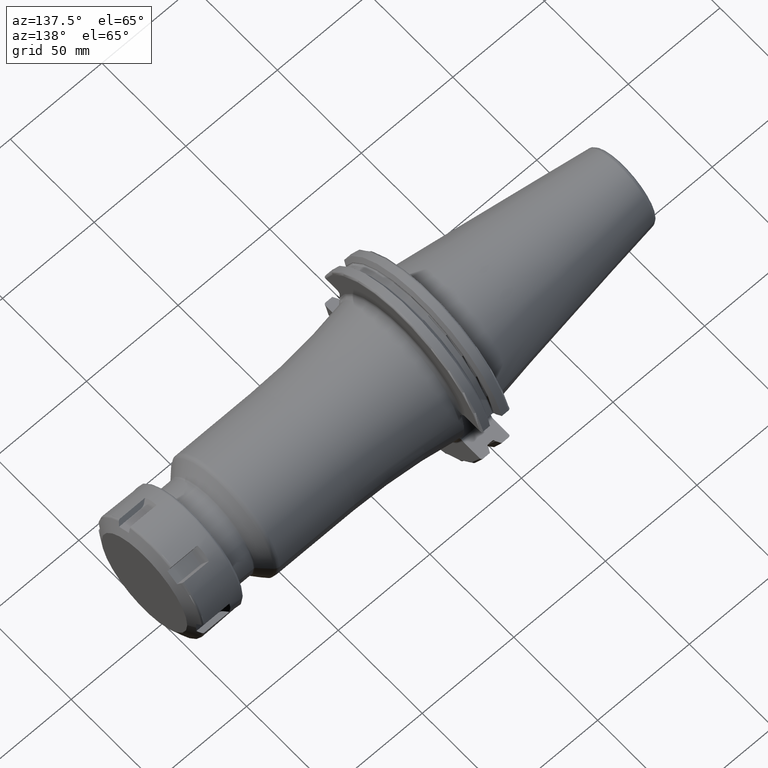
[diagram: clean part render]
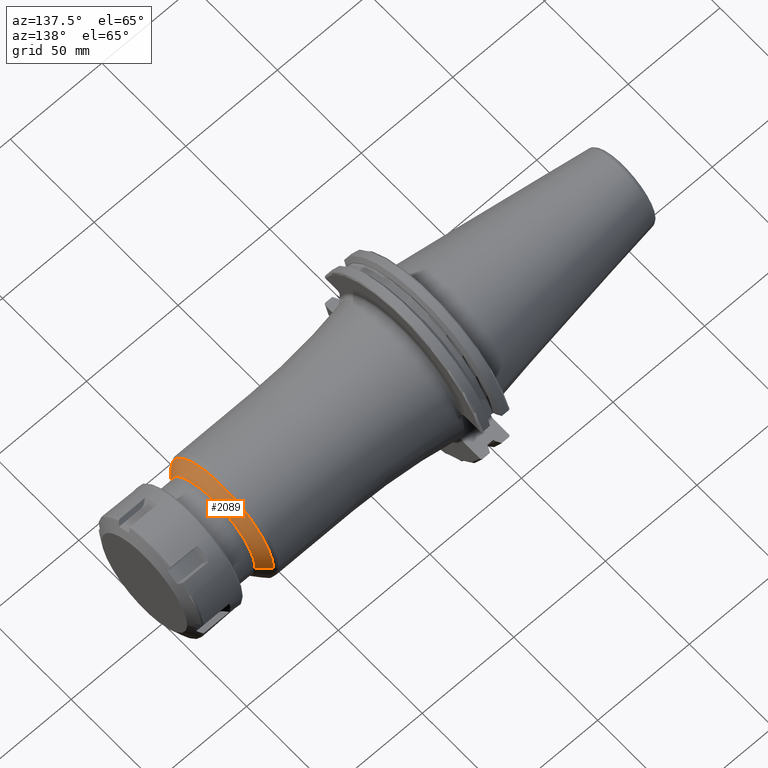
[diagram: same view with one face highlighted and labeled with its STEP entity id]
A machine part, auxiliary view. The second image highlights one B-rep face of the part: STEP entity #2089.
In plain terms, the highlighted conical surface has half-angle 45 deg.
Its self-contained STEP definition (entity closure, byte-faithful):
#329=DIRECTION('',(-7.071067811865E-1,-7.071067811865E-1,-6.894379126553E-13));
#330=VECTOR('',#329,7.535533905932E0);
#331=CARTESIAN_POINT('',(1.227071067812E2,-2.529289321881E1,
5.472847112381E-14));
#332=LINE('',#331,#330);
#338=DIRECTION('',(-7.071067811865E-1,7.071067811865E-1,6.896652341502E-13));
#339=VECTOR('',#338,7.535533905932E0);
#340=CARTESIAN_POINT('',(1.227071067812E2,2.529289321881E1,
-5.534324808206E-14));
#341=LINE('',#340,#339);
#342=CARTESIAN_POINT('',(1.173786796564E2,0.E0,0.E0));
#343=DIRECTION('',(-1.E0,0.E0,0.E0));
#344=DIRECTION('',(0.E0,-1.E0,0.E0));
#345=AXIS2_PLACEMENT_3D('',#342,#343,#344);
#347=CARTESIAN_POINT('',(1.227071067812E2,0.E0,0.E0));
#348=DIRECTION('',(1.E0,0.E0,0.E0));
#349=DIRECTION('',(0.E0,1.E0,0.E0));
#350=AXIS2_PLACEMENT_3D('',#347,#348,#349);
#1637=CARTESIAN_POINT('',(1.227071067812E2,-2.529289321881E1,0.E0));
#1638=CARTESIAN_POINT('',(1.227071067812E2,2.529289321881E1,0.E0));
#1639=VERTEX_POINT('',#1637);
#1640=VERTEX_POINT('',#1638);
#1649=CARTESIAN_POINT('',(1.173786796564E2,3.062132034356E1,0.E0));
#1650=CARTESIAN_POINT('',(1.173786796564E2,-3.062132034356E1,0.E0));
#1651=VERTEX_POINT('',#1649);
#1652=VERTEX_POINT('',#1650);
#2077=CARTESIAN_POINT('',(1.200428932188E2,0.E0,0.E0));
#2078=DIRECTION('',(-1.E0,0.E0,0.E0));
#2079=DIRECTION('',(0.E0,1.E0,0.E0));
#2080=AXIS2_PLACEMENT_3D('',#2077,#2078,#2079);
#2081=CONICAL_SURFACE('',#2080,2.795710678119E1,4.5E1);
#2082=ORIENTED_EDGE('',*,*,#2042,.T.);
#2083=ORIENTED_EDGE('',*,*,#2072,.F.);
#2085=ORIENTED_EDGE('',*,*,#2084,.T.);
#2086=ORIENTED_EDGE('',*,*,#2068,.T.);
#2087=EDGE_LOOP('',(#2082,#2083,#2085,#2086));
#2088=FACE_OUTER_BOUND('',#2087,.F.);
#2089=ADVANCED_FACE('',(#2088),#2081,.T.);
#346=CIRCLE('',#345,3.062132034356E1);
#351=CIRCLE('',#350,2.529289321881E1);
#2042=EDGE_CURVE('',#1652,#1651,#346,.T.);
#2068=EDGE_CURVE('',#1639,#1652,#332,.T.);
#2072=EDGE_CURVE('',#1640,#1651,#341,.T.);
#2084=EDGE_CURVE('',#1640,#1639,#351,.T.);